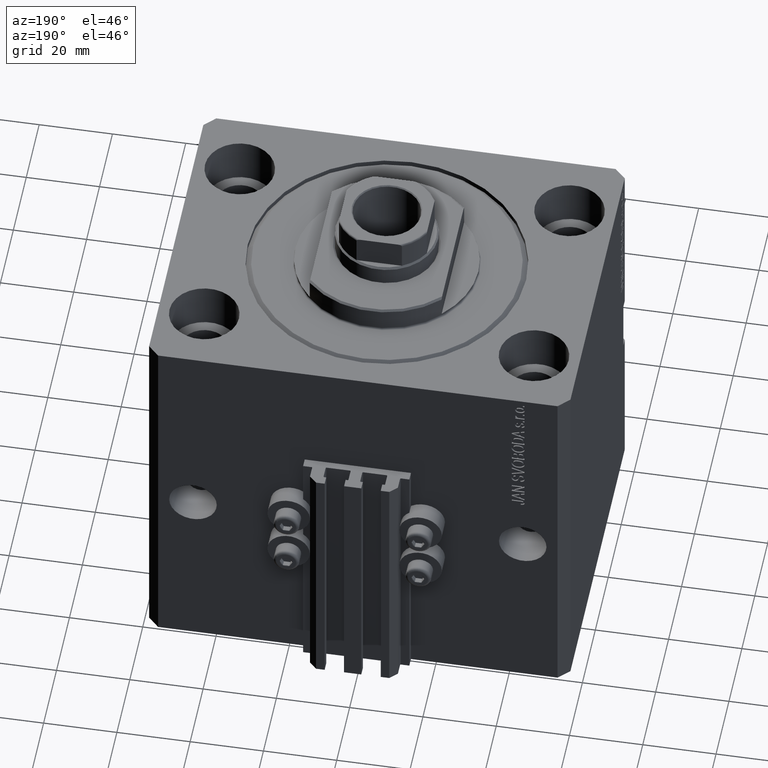
[diagram: clean part render]
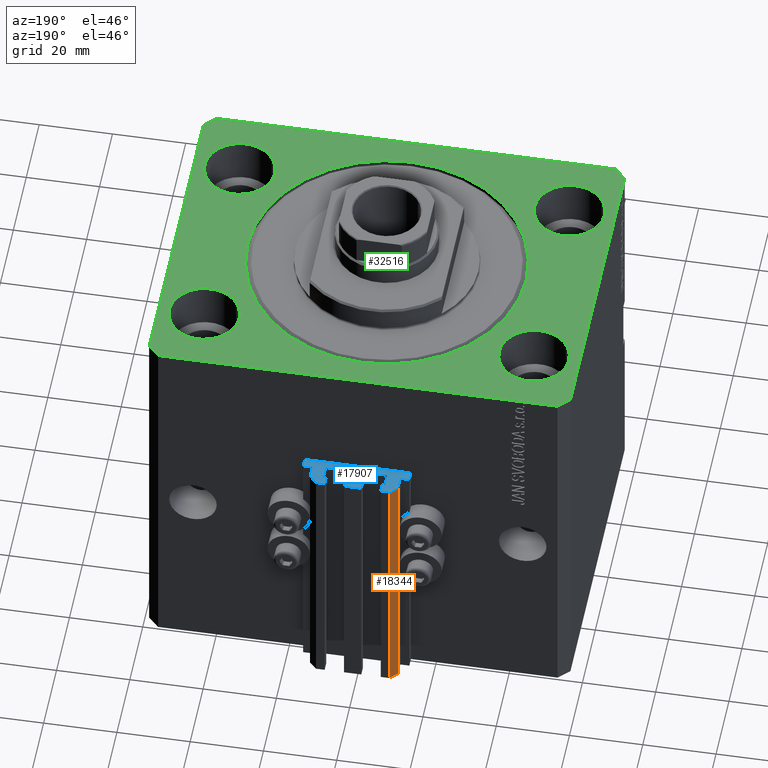
[diagram: same view with three faces highlighted in distinct colors, each labeled with its STEP entity id]
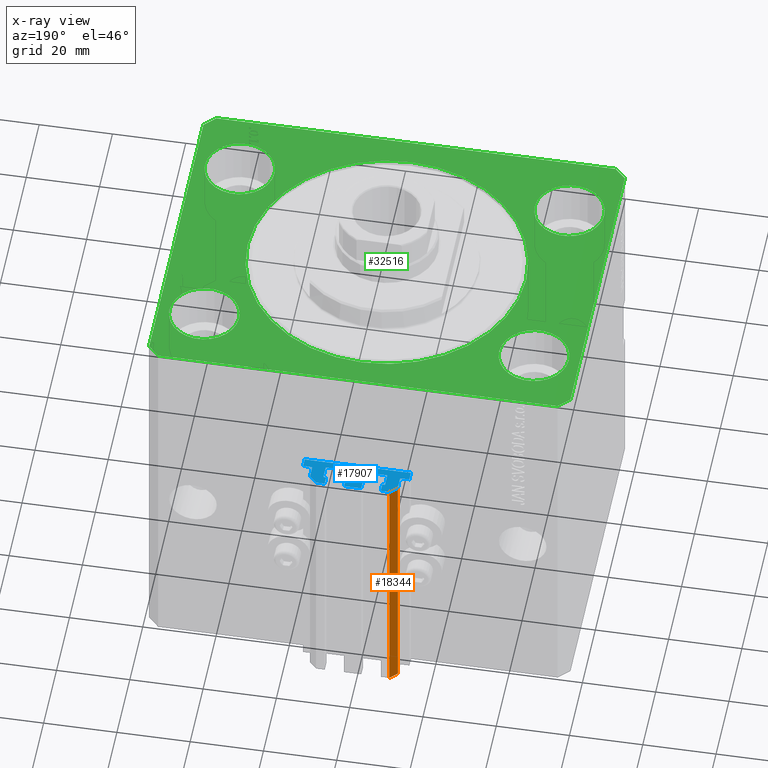
[diagram: x-ray of the same camera — body ghosted, the three highlighted faces saturated]
A machine part, auxiliary view with three faces highlighted in distinct colors.
The next image is the same camera in x-ray (body ghosted, the three faces saturated) — at least one of them is partly hidden behind the body in this view.
Their STEP definitions:

[orange] entity #18344 — the highlighted planar face has unit normal (-0.7071, 0.7071, 0).
#126 = VECTOR ( 'NONE', #24830, 1000.000000000000000 ) ;
#417 = CARTESIAN_POINT ( 'NONE',  ( -10.00000000000000000, 52.99999999999999289, -105.0000000000000000 ) ) ;
#1709 = CARTESIAN_POINT ( 'NONE',  ( -10.00000000000000000, 52.99999999999999289, -105.0000000000000000 ) ) ;
#1954 = LINE ( 'NONE', #1709, #29290 ) ;
#2420 = FACE_OUTER_BOUND ( 'NONE', #46989, .T. ) ;
#5131 = CARTESIAN_POINT ( 'NONE',  ( -10.00000000000000000, 52.99999999999999289, -105.0000000000000000 ) ) ;
#6419 = LINE ( 'NONE', #18194, #43615 ) ;
#6645 = AXIS2_PLACEMENT_3D ( 'NONE', #25037, #20612, #13225 ) ;
#6779 = EDGE_CURVE ( 'NONE', #14299, #33506, #16280, .T. ) ;
#9795 = PLANE ( 'NONE',  #6645 ) ;
#10245 = CARTESIAN_POINT ( 'NONE',  ( -12.00000000000000000, 50.99999999999999289, -33.00000000000000000 ) ) ;
#11392 = EDGE_CURVE ( 'NONE', #43782, #16552, #1954, .T. ) ;
#12132 = VECTOR ( 'NONE', #20115, 999.9999999999998863 ) ;
#13225 = DIRECTION ( 'NONE',  ( -0.7071067811865472397, -0.7071067811865479058, 0.000000000000000000 ) ) ;
#14299 = VERTEX_POINT ( 'NONE', #33981 ) ;
#16280 = LINE ( 'NONE', #42654, #126 ) ;
#16552 = VERTEX_POINT ( 'NONE', #42542 ) ;
#18194 = CARTESIAN_POINT ( 'NONE',  ( -10.00000000000000000, 52.99999999999999289, -33.00000000000000000 ) ) ;
#18282 = EDGE_CURVE ( 'NONE', #43782, #14299, #20361, .T. ) ;
#18344 = ADVANCED_FACE ( 'NONE', ( #2420 ), #9795, .T. ) ;
#20115 = DIRECTION ( 'NONE',  ( -0.7071067811865472397, -0.7071067811865479058, 0.000000000000000000 ) ) ;
#20361 = LINE ( 'NONE', #5131, #12132 ) ;
#20612 = DIRECTION ( 'NONE',  ( -0.7071067811865479058, 0.7071067811865472397, 0.000000000000000000 ) ) ;
#22676 = EDGE_CURVE ( 'NONE', #16552, #33506, #6419, .T. ) ;
#23146 = ORIENTED_EDGE ( 'NONE', *, *, #11392, .F. ) ;
#24830 = DIRECTION ( 'NONE',  ( 0.000000000000000000, 0.000000000000000000, 1.000000000000000000 ) ) ;
#25037 = CARTESIAN_POINT ( 'NONE',  ( -10.00000000000000000, 52.99999999999999289, -105.0000000000000000 ) ) ;
#29290 = VECTOR ( 'NONE', #46760, 1000.000000000000000 ) ;
#29938 = ORIENTED_EDGE ( 'NONE', *, *, #18282, .T. ) ;
#32762 = ORIENTED_EDGE ( 'NONE', *, *, #22676, .F. ) ;
#33506 = VERTEX_POINT ( 'NONE', #10245 ) ;
#33981 = CARTESIAN_POINT ( 'NONE',  ( -12.00000000000000000, 50.99999999999999289, -105.0000000000000000 ) ) ;
#40400 = DIRECTION ( 'NONE',  ( -0.7071067811865472397, -0.7071067811865479058, 0.000000000000000000 ) ) ;
#42542 = CARTESIAN_POINT ( 'NONE',  ( -10.00000000000000000, 52.99999999999999289, -33.00000000000000000 ) ) ;
#42654 = CARTESIAN_POINT ( 'NONE',  ( -12.00000000000000000, 50.99999999999999289, -105.0000000000000000 ) ) ;
#43615 = VECTOR ( 'NONE', #40400, 999.9999999999998863 ) ;
#43782 = VERTEX_POINT ( 'NONE', #417 ) ;
#46760 = DIRECTION ( 'NONE',  ( 0.000000000000000000, 0.000000000000000000, 1.000000000000000000 ) ) ;
#46799 = ORIENTED_EDGE ( 'NONE', *, *, #6779, .T. ) ;
#46989 = EDGE_LOOP ( 'NONE', ( #32762, #23146, #29938, #46799 ) ) ;

[blue] entity #17907 — the highlighted planar face has unit normal (0, 0, 1).
#58 = PLANE ( 'NONE',  #11328 ) ;
#542 = DIRECTION ( 'NONE',  ( 0.000000000000000000, 0.000000000000000000, 1.000000000000000000 ) ) ;
#552 = CARTESIAN_POINT ( 'NONE',  ( -2.350000000000003197, 50.60000000000000142, -33.00000000000000000 ) ) ;
#567 = CARTESIAN_POINT ( 'NONE',  ( -1.800000000000000933, 47.19999999999998863, -33.00000000000000000 ) ) ;
#581 = CARTESIAN_POINT ( 'NONE',  ( 12.20000000000000107, 47.70000000000000284, -33.00000000000000000 ) ) ;
#586 = EDGE_CURVE ( 'NONE', #5356, #34817, #39201, .T. ) ;
#737 = CARTESIAN_POINT ( 'NONE',  ( 8.400000000000003908, 50.39999999999999858, -33.00000000000000000 ) ) ;
#771 = CARTESIAN_POINT ( 'NONE',  ( -12.00000000000000000, 50.99999999999999289, -33.00000000000000000 ) ) ;
#888 = VECTOR ( 'NONE', #45361, 1000.000000000000000 ) ;
#996 = ORIENTED_EDGE ( 'NONE', *, *, #22676, .T. ) ;
#1010 = CARTESIAN_POINT ( 'NONE',  ( -8.199999999999999289, 50.59999999999999432, -33.00000000000000000 ) ) ;
#1134 = ORIENTED_EDGE ( 'NONE', *, *, #1802, .F. ) ;
#1332 = DIRECTION ( 'NONE',  ( 0.000000000000000000, 0.000000000000000000, 1.000000000000000000 ) ) ;
#1422 = EDGE_CURVE ( 'NONE', #19037, #11913, #31559, .T. ) ;
#1776 = VERTEX_POINT ( 'NONE', #13771 ) ;
#1802 = EDGE_CURVE ( 'NONE', #3593, #3839, #3845, .T. ) ;
#2008 = LINE ( 'NONE', #5206, #31724 ) ;
#2223 = CARTESIAN_POINT ( 'NONE',  ( 12.00000000000000178, 47.70000000000000284, -33.00000000000000000 ) ) ;
#2543 = VERTEX_POINT ( 'NONE', #15040 ) ;
#2601 = EDGE_CURVE ( 'NONE', #33506, #28186, #34476, .T. ) ;
#2895 = EDGE_CURVE ( 'NONE', #5356, #14603, #28234, .T. ) ;
#3073 = VECTOR ( 'NONE', #16294, 1000.000000000000000 ) ;
#3253 = FACE_OUTER_BOUND ( 'NONE', #33836, .T. ) ;
#3358 = CARTESIAN_POINT ( 'NONE',  ( -7.650000000000002132, 50.59999999999999432, -33.00000000000000000 ) ) ;
#3447 = CARTESIAN_POINT ( 'NONE',  ( -12.20000000000000107, 47.49999999999998579, -33.00000000000000000 ) ) ;
#3469 = VERTEX_POINT ( 'NONE', #41648 ) ;
#3517 = DIRECTION ( 'NONE',  ( 1.000000000000000000, -1.261617073437685503E-14, 0.000000000000000000 ) ) ;
#3593 = VERTEX_POINT ( 'NONE', #1010 ) ;
#3839 = VERTEX_POINT ( 'NONE', #30241 ) ;
#3845 = CIRCLE ( 'NONE', #21112, 0.2000000000000074496 ) ;
#3885 = ORIENTED_EDGE ( 'NONE', *, *, #11018, .T. ) ;
#4609 = CARTESIAN_POINT ( 'NONE',  ( 8.400000000000000355, 47.19999999999998863, -33.00000000000000000 ) ) ;
#4816 = EDGE_CURVE ( 'NONE', #34490, #42050, #39846, .T. ) ;
#4988 = AXIS2_PLACEMENT_3D ( 'NONE', #35042, #1332, #12625 ) ;
#5206 = CARTESIAN_POINT ( 'NONE',  ( -8.399999999999996803, 47.19999999999998863, -33.00000000000000000 ) ) ;
#5337 = VERTEX_POINT ( 'NONE', #33837 ) ;
#5356 = VERTEX_POINT ( 'NONE', #11415 ) ;
#5418 = LINE ( 'NONE', #2223, #12252 ) ;
#5494 = DIRECTION ( 'NONE',  ( -0.7071067811865474617, 0.7071067811865474617, 0.000000000000000000 ) ) ;
#5801 = LINE ( 'NONE', #24976, #48195 ) ;
#5947 = DIRECTION ( 'NONE',  ( -1.000000000000000000, 0.000000000000000000, 0.000000000000000000 ) ) ;
#6165 = DIRECTION ( 'NONE',  ( 1.000000000000000000, 0.000000000000000000, 0.000000000000000000 ) ) ;
#6380 = ORIENTED_EDGE ( 'NONE', *, *, #40675, .F. ) ;
#6419 = LINE ( 'NONE', #18194, #43615 ) ;
#6546 = VECTOR ( 'NONE', #5947, 1000.000000000000000 ) ;
#6609 = VECTOR ( 'NONE', #37282, 1000.000000000000000 ) ;
#6831 = CARTESIAN_POINT ( 'NONE',  ( -7.650000000000002132, 52.99999999999999289, -33.00000000000000000 ) ) ;
#7042 = ORIENTED_EDGE ( 'NONE', *, *, #43230, .T. ) ;
#7057 = LINE ( 'NONE', #25274, #23546 ) ;
#7190 = EDGE_CURVE ( 'NONE', #3469, #9268, #10728, .T. ) ;
#7243 = VECTOR ( 'NONE', #21523, 1000.000000000000000 ) ;
#7262 = CARTESIAN_POINT ( 'NONE',  ( 8.200000000000001066, 50.60000000000000853, -33.00000000000000000 ) ) ;
#7298 = LINE ( 'NONE', #10492, #24546 ) ;
#7416 = CARTESIAN_POINT ( 'NONE',  ( 8.200000000000001066, 50.39999999999999858, -33.00000000000000000 ) ) ;
#7503 = CIRCLE ( 'NONE', #28709, 0.2000000000000033418 ) ;
#7681 = LINE ( 'NONE', #552, #888 ) ;
#7721 = EDGE_CURVE ( 'NONE', #22819, #5337, #37079, .T. ) ;
#7873 = VECTOR ( 'NONE', #47949, 1000.000000000000000 ) ;
#8666 = AXIS2_PLACEMENT_3D ( 'NONE', #18493, #542, #40944 ) ;
#8698 = ORIENTED_EDGE ( 'NONE', *, *, #9501, .T. ) ;
#8889 = CARTESIAN_POINT ( 'NONE',  ( 14.49999999999999645, 47.50000000000001421, -33.00000000000000000 ) ) ;
#9268 = VERTEX_POINT ( 'NONE', #6831 ) ;
#9440 = CARTESIAN_POINT ( 'NONE',  ( 7.649999999999998579, 53.00000000000000711, -33.00000000000000000 ) ) ;
#9492 = CIRCLE ( 'NONE', #8666, 0.2000000000000040079 ) ;
#9501 = EDGE_CURVE ( 'NONE', #30312, #28605, #41488, .T. ) ;
#9761 = ORIENTED_EDGE ( 'NONE', *, *, #48147, .T. ) ;
#9842 = DIRECTION ( 'NONE',  ( -5.256737805990328981E-16, 1.000000000000000000, 0.000000000000000000 ) ) ;
#10067 = VERTEX_POINT ( 'NONE', #34255 ) ;
#10245 = CARTESIAN_POINT ( 'NONE',  ( -12.00000000000000000, 50.99999999999999289, -33.00000000000000000 ) ) ;
#10492 = CARTESIAN_POINT ( 'NONE',  ( -1.600000000000000533, 50.39999999999999858, -33.00000000000000000 ) ) ;
#10728 = LINE ( 'NONE', #3358, #28381 ) ;
#10791 = DIRECTION ( 'NONE',  ( 0.000000000000000000, 1.000000000000000000, 0.000000000000000000 ) ) ;
#11018 = EDGE_CURVE ( 'NONE', #30999, #5337, #28320, .T. ) ;
#11328 = AXIS2_PLACEMENT_3D ( 'NONE', #18248, #33281, #30068 ) ;
#11415 = CARTESIAN_POINT ( 'NONE',  ( 8.199999999999999289, 46.99999999999998579, -33.00000000000000000 ) ) ;
#11560 = EDGE_CURVE ( 'NONE', #16370, #21830, #5801, .T. ) ;
#11585 = DIRECTION ( 'NONE',  ( 1.000000000000000000, 0.000000000000000000, 0.000000000000000000 ) ) ;
#11756 = CIRCLE ( 'NONE', #17283, 0.2000000000000040079 ) ;
#11789 = EDGE_CURVE ( 'NONE', #24751, #28605, #16743, .T. ) ;
#11814 = CARTESIAN_POINT ( 'NONE',  ( 8.199999999999999289, 47.19999999999998863, -33.00000000000000000 ) ) ;
#11869 = VERTEX_POINT ( 'NONE', #9440 ) ;
#11879 = CARTESIAN_POINT ( 'NONE',  ( -12.20000000000000107, 47.49999999999998579, -33.00000000000000000 ) ) ;
#11913 = VERTEX_POINT ( 'NONE', #18742 ) ;
#11992 = DIRECTION ( 'NONE',  ( 0.000000000000000000, -1.000000000000000000, 0.000000000000000000 ) ) ;
#12120 = EDGE_CURVE ( 'NONE', #24751, #3839, #2008, .T. ) ;
#12252 = VECTOR ( 'NONE', #9842, 1000.000000000000000 ) ;
#12293 = LINE ( 'NONE', #16468, #37109 ) ;
#12625 = DIRECTION ( 'NONE',  ( 1.000000000000000000, 0.000000000000000000, 0.000000000000000000 ) ) ;
#12644 = CARTESIAN_POINT ( 'NONE',  ( 1.600000000000000533, 50.39999999999999858, -33.00000000000000000 ) ) ;
#13031 = DIRECTION ( 'NONE',  ( 0.000000000000000000, -1.000000000000000000, 0.000000000000000000 ) ) ;
#13365 = VERTEX_POINT ( 'NONE', #737 ) ;
#13696 = EDGE_CURVE ( 'NONE', #1776, #30257, #28696, .T. ) ;
#13771 = CARTESIAN_POINT ( 'NONE',  ( -2.350000000000003642, 53.00000000000000000, -33.00000000000000000 ) ) ;
#13783 = CARTESIAN_POINT ( 'NONE',  ( 2.349999999999999645, 53.00000000000000000, -33.00000000000000000 ) ) ;
#13796 = DIRECTION ( 'NONE',  ( -1.084202172485506406E-15, 1.000000000000000000, 0.000000000000000000 ) ) ;
#13854 = CIRCLE ( 'NONE', #32728, 0.1999999999999994282 ) ;
#13864 = CARTESIAN_POINT ( 'NONE',  ( -12.00000000000000000, 47.69999999999999574, -33.00000000000000000 ) ) ;
#14321 = ORIENTED_EDGE ( 'NONE', *, *, #24064, .F. ) ;
#14468 = ORIENTED_EDGE ( 'NONE', *, *, #29976, .F. ) ;
#14603 = VERTEX_POINT ( 'NONE', #4609 ) ;
#14956 = ORIENTED_EDGE ( 'NONE', *, *, #7721, .F. ) ;
#15040 = CARTESIAN_POINT ( 'NONE',  ( 1.800000000000000933, 50.60000000000000853, -33.00000000000000000 ) ) ;
#15637 = ORIENTED_EDGE ( 'NONE', *, *, #17546, .T. ) ;
#16204 = VERTEX_POINT ( 'NONE', #47804 ) ;
#16294 = DIRECTION ( 'NONE',  ( -1.000000000000000000, 0.000000000000000000, 0.000000000000000000 ) ) ;
#16303 = CARTESIAN_POINT ( 'NONE',  ( 12.00000000000000000, 51.00000000000000711, -33.00000000000000000 ) ) ;
#16370 = VERTEX_POINT ( 'NONE', #38651 ) ;
#16433 = VERTEX_POINT ( 'NONE', #35686 ) ;
#16468 = CARTESIAN_POINT ( 'NONE',  ( 14.49999999999999645, 45.00000000000000000, -33.00000000000000000 ) ) ;
#16552 = VERTEX_POINT ( 'NONE', #42542 ) ;
#16670 = VERTEX_POINT ( 'NONE', #41814 ) ;
#16743 = CIRCLE ( 'NONE', #4988, 0.1999999999999987899 ) ;
#17151 = ORIENTED_EDGE ( 'NONE', *, *, #1422, .T. ) ;
#17283 = AXIS2_PLACEMENT_3D ( 'NONE', #7416, #23135, #33516 ) ;
#17546 = EDGE_CURVE ( 'NONE', #31104, #41065, #26418, .T. ) ;
#17631 = EDGE_CURVE ( 'NONE', #10067, #16433, #43162, .T. ) ;
#17650 = CARTESIAN_POINT ( 'NONE',  ( -14.50000000000000000, 45.00000000000000000, -33.00000000000000000 ) ) ;
#17795 = EDGE_CURVE ( 'NONE', #41687, #16670, #42810, .T. ) ;
#17907 = ADVANCED_FACE ( 'NONE', ( #3253 ), #58, .T. ) ;
#18080 = CARTESIAN_POINT ( 'NONE',  ( -1.800000000000000933, 46.99999999999999289, -33.00000000000000000 ) ) ;
#18118 = DIRECTION ( 'NONE',  ( -1.000000000000000000, 0.000000000000000000, 0.000000000000000000 ) ) ;
#18194 = CARTESIAN_POINT ( 'NONE',  ( -10.00000000000000000, 52.99999999999999289, -33.00000000000000000 ) ) ;
#18248 = CARTESIAN_POINT ( 'NONE',  ( 12.20000000000000107, 47.70000000000000284, -33.00000000000000000 ) ) ;
#18493 = CARTESIAN_POINT ( 'NONE',  ( -12.20000000000000107, 47.69999999999999574, -33.00000000000000000 ) ) ;
#18742 = CARTESIAN_POINT ( 'NONE',  ( -14.50000000000000000, 47.49999999999998579, -33.00000000000000000 ) ) ;
#18769 = DIRECTION ( 'NONE',  ( 1.000000000000000000, 0.000000000000000000, 0.000000000000000000 ) ) ;
#18794 = ORIENTED_EDGE ( 'NONE', *, *, #11560, .T. ) ;
#19037 = VERTEX_POINT ( 'NONE', #3447 ) ;
#19055 = CARTESIAN_POINT ( 'NONE',  ( 1.800000000000000933, 50.60000000000000853, -33.00000000000000000 ) ) ;
#19669 = EDGE_CURVE ( 'NONE', #22819, #10067, #5418, .T. ) ;
#20273 = CARTESIAN_POINT ( 'NONE',  ( -14.50000000000000000, 45.00000000000000000, -33.00000000000000000 ) ) ;
#20608 = VECTOR ( 'NONE', #47682, 1000.000000000000000 ) ;
#20628 = EDGE_CURVE ( 'NONE', #1776, #21830, #37464, .T. ) ;
#21112 = AXIS2_PLACEMENT_3D ( 'NONE', #43590, #24845, #6165 ) ;
#21249 = CIRCLE ( 'NONE', #42504, 0.2000000000000033418 ) ;
#21523 = DIRECTION ( 'NONE',  ( -1.000000000000000000, 0.000000000000000000, 0.000000000000000000 ) ) ;
#21617 = CARTESIAN_POINT ( 'NONE',  ( 1.600000000000000533, 47.19999999999998863, -33.00000000000000000 ) ) ;
#21830 = VERTEX_POINT ( 'NONE', #13783 ) ;
#22171 = CARTESIAN_POINT ( 'NONE',  ( -2.350000000000003642, 53.00000000000000000, -33.00000000000000000 ) ) ;
#22417 = DIRECTION ( 'NONE',  ( 1.000000000000000000, 0.000000000000000000, 0.000000000000000000 ) ) ;
#22676 = EDGE_CURVE ( 'NONE', #16552, #33506, #6419, .T. ) ;
#22819 = VERTEX_POINT ( 'NONE', #38867 ) ;
#23135 = DIRECTION ( 'NONE',  ( 0.000000000000000000, 0.000000000000000000, 1.000000000000000000 ) ) ;
#23159 = ORIENTED_EDGE ( 'NONE', *, *, #43632, .T. ) ;
#23235 = LINE ( 'NONE', #19055, #35002 ) ;
#23408 = VECTOR ( 'NONE', #10791, 1000.000000000000000 ) ;
#23546 = VECTOR ( 'NONE', #40808, 1000.000000000000000 ) ;
#23595 = ORIENTED_EDGE ( 'NONE', *, *, #13696, .T. ) ;
#24064 = EDGE_CURVE ( 'NONE', #16204, #34817, #7503, .T. ) ;
#24546 = VECTOR ( 'NONE', #29197, 1000.000000000000000 ) ;
#24749 = DIRECTION ( 'NONE',  ( 1.000000000000000000, 0.000000000000000000, 0.000000000000000000 ) ) ;
#24751 = VERTEX_POINT ( 'NONE', #25601 ) ;
#24845 = DIRECTION ( 'NONE',  ( 0.000000000000000000, 0.000000000000000000, 1.000000000000000000 ) ) ;
#24976 = CARTESIAN_POINT ( 'NONE',  ( 2.349999999999999645, 50.60000000000000142, -33.00000000000000000 ) ) ;
#25162 = CARTESIAN_POINT ( 'NONE',  ( -1.800000000000000933, 50.39999999999999858, -33.00000000000000000 ) ) ;
#25253 = CARTESIAN_POINT ( 'NONE',  ( -2.350000000000003642, 53.00000000000000000, -33.00000000000000000 ) ) ;
#25274 = CARTESIAN_POINT ( 'NONE',  ( 8.400000000000000355, 50.39999999999999858, -33.00000000000000000 ) ) ;
#25601 = CARTESIAN_POINT ( 'NONE',  ( -8.399999999999996803, 47.19999999999998863, -33.00000000000000000 ) ) ;
#26331 = ORIENTED_EDGE ( 'NONE', *, *, #44224, .F. ) ;
#26390 = DIRECTION ( 'NONE',  ( 1.000000000000000000, 0.000000000000000000, 0.000000000000000000 ) ) ;
#26418 = LINE ( 'NONE', #41713, #6609 ) ;
#26630 = DIRECTION ( 'NONE',  ( 0.000000000000000000, 0.000000000000000000, 1.000000000000000000 ) ) ;
#26822 = DIRECTION ( 'NONE',  ( 0.000000000000000000, 0.000000000000000000, 1.000000000000000000 ) ) ;
#26979 = CARTESIAN_POINT ( 'NONE',  ( -8.199999999999997513, 46.99999999999999289, -33.00000000000000000 ) ) ;
#26982 = EDGE_CURVE ( 'NONE', #3593, #3469, #47610, .T. ) ;
#27169 = DIRECTION ( 'NONE',  ( 1.000000000000000000, -1.261617073437681085E-14, 0.000000000000000000 ) ) ;
#27421 = AXIS2_PLACEMENT_3D ( 'NONE', #11814, #26822, #41880 ) ;
#27468 = ORIENTED_EDGE ( 'NONE', *, *, #586, .T. ) ;
#27487 = ORIENTED_EDGE ( 'NONE', *, *, #11789, .F. ) ;
#27669 = EDGE_CURVE ( 'NONE', #2543, #16370, #23235, .T. ) ;
#28186 = VERTEX_POINT ( 'NONE', #13864 ) ;
#28234 = CIRCLE ( 'NONE', #27421, 0.2000000000000022593 ) ;
#28268 = VECTOR ( 'NONE', #13031, 1000.000000000000000 ) ;
#28320 = LINE ( 'NONE', #46568, #6546 ) ;
#28381 = VECTOR ( 'NONE', #36834, 1000.000000000000000 ) ;
#28437 = DIRECTION ( 'NONE',  ( 0.000000000000000000, 0.000000000000000000, 1.000000000000000000 ) ) ;
#28605 = VERTEX_POINT ( 'NONE', #26979 ) ;
#28696 = LINE ( 'NONE', #25253, #20608 ) ;
#28709 = AXIS2_PLACEMENT_3D ( 'NONE', #32395, #28437, #24749 ) ;
#28975 = DIRECTION ( 'NONE',  ( 1.000000000000000000, 0.000000000000000000, 0.000000000000000000 ) ) ;
#29012 = VECTOR ( 'NONE', #38425, 1000.000000000000000 ) ;
#29197 = DIRECTION ( 'NONE',  ( -6.776263578034385456E-17, -1.000000000000000000, 0.000000000000000000 ) ) ;
#29622 = VECTOR ( 'NONE', #34748, 1000.000000000000000 ) ;
#29673 = CARTESIAN_POINT ( 'NONE',  ( -1.599999999999997868, 50.39999999999999858, -33.00000000000000000 ) ) ;
#29740 = LINE ( 'NONE', #21617, #23408 ) ;
#29826 = ORIENTED_EDGE ( 'NONE', *, *, #27669, .T. ) ;
#29976 = EDGE_CURVE ( 'NONE', #30312, #40309, #13854, .T. ) ;
#30068 = DIRECTION ( 'NONE',  ( 1.000000000000000000, 0.000000000000000000, -0.000000000000000000 ) ) ;
#30241 = CARTESIAN_POINT ( 'NONE',  ( -8.400000000000000355, 50.39999999999998437, -33.00000000000000000 ) ) ;
#30257 = VERTEX_POINT ( 'NONE', #33977 ) ;
#30312 = VERTEX_POINT ( 'NONE', #37920 ) ;
#30711 = LINE ( 'NONE', #30942, #38481 ) ;
#30809 = LINE ( 'NONE', #46573, #29622 ) ;
#30942 = CARTESIAN_POINT ( 'NONE',  ( 7.649999999999998579, 53.00000000000000711, -33.00000000000000000 ) ) ;
#30999 = VERTEX_POINT ( 'NONE', #8889 ) ;
#31104 = VERTEX_POINT ( 'NONE', #47547 ) ;
#31175 = ORIENTED_EDGE ( 'NONE', *, *, #17795, .F. ) ;
#31559 = LINE ( 'NONE', #11879, #3073 ) ;
#31724 = VECTOR ( 'NONE', #13796, 1000.000000000000000 ) ;
#31810 = EDGE_CURVE ( 'NONE', #9268, #16552, #30809, .T. ) ;
#31994 = LINE ( 'NONE', #46788, #28268 ) ;
#32395 = CARTESIAN_POINT ( 'NONE',  ( 1.800000000000000933, 47.19999999999998863, -33.00000000000000000 ) ) ;
#32580 = CARTESIAN_POINT ( 'NONE',  ( -8.199999999999999289, 50.60000000000000142, -33.00000000000000000 ) ) ;
#32715 = ORIENTED_EDGE ( 'NONE', *, *, #47675, .T. ) ;
#32728 = AXIS2_PLACEMENT_3D ( 'NONE', #567, #26630, #26390 ) ;
#32903 = CARTESIAN_POINT ( 'NONE',  ( 9.999999999999998224, 53.00000000000000711, -33.00000000000000000 ) ) ;
#33281 = DIRECTION ( 'NONE',  ( 0.000000000000000000, 0.000000000000000000, 1.000000000000000000 ) ) ;
#33506 = VERTEX_POINT ( 'NONE', #10245 ) ;
#33516 = DIRECTION ( 'NONE',  ( 1.000000000000000000, 0.000000000000000000, 0.000000000000000000 ) ) ;
#33836 = EDGE_LOOP ( 'NONE', ( #7042, #38794, #32715, #3885, #14956, #34790, #39810, #44226, #45567, #15637, #43523, #23159, #43428, #27468, #14321, #43497, #6380, #29826, #18794, #34455, #23595, #43770, #31175, #9761, #14468, #8698, #27487, #42042, #1134, #48378, #46282, #48283, #996, #41116, #26331, #17151 ) ) ;
#33837 = CARTESIAN_POINT ( 'NONE',  ( 12.20000000000000107, 47.50000000000001421, -33.00000000000000000 ) ) ;
#33977 = CARTESIAN_POINT ( 'NONE',  ( -2.350000000000003197, 50.60000000000000142, -33.00000000000000000 ) ) ;
#34009 = DIRECTION ( 'NONE',  ( 0.000000000000000000, 0.000000000000000000, 1.000000000000000000 ) ) ;
#34255 = CARTESIAN_POINT ( 'NONE',  ( 12.00000000000000000, 51.00000000000000711, -33.00000000000000000 ) ) ;
#34455 = ORIENTED_EDGE ( 'NONE', *, *, #20628, .F. ) ;
#34476 = LINE ( 'NONE', #771, #29012 ) ;
#34490 = VERTEX_POINT ( 'NONE', #20273 ) ;
#34748 = DIRECTION ( 'NONE',  ( -1.000000000000000000, 0.000000000000000000, 0.000000000000000000 ) ) ;
#34775 = VECTOR ( 'NONE', #18118, 1000.000000000000000 ) ;
#34790 = ORIENTED_EDGE ( 'NONE', *, *, #19669, .T. ) ;
#34817 = VERTEX_POINT ( 'NONE', #39203 ) ;
#35002 = VECTOR ( 'NONE', #27169, 1000.000000000000000 ) ;
#35033 = EDGE_CURVE ( 'NONE', #16204, #36053, #29740, .T. ) ;
#35042 = CARTESIAN_POINT ( 'NONE',  ( -8.199999999999997513, 47.19999999999998863, -33.00000000000000000 ) ) ;
#35686 = CARTESIAN_POINT ( 'NONE',  ( 9.999999999999998224, 53.00000000000000711, -33.00000000000000000 ) ) ;
#36053 = VERTEX_POINT ( 'NONE', #12644 ) ;
#36834 = DIRECTION ( 'NONE',  ( 0.000000000000000000, 1.000000000000000000, 0.000000000000000000 ) ) ;
#36843 = LINE ( 'NONE', #32903, #34775 ) ;
#37079 = CIRCLE ( 'NONE', #41041, 0.1999999999999953204 ) ;
#37109 = VECTOR ( 'NONE', #38661, 1000.000000000000000 ) ;
#37282 = DIRECTION ( 'NONE',  ( 1.000000000000000000, 0.000000000000000000, 0.000000000000000000 ) ) ;
#37464 = LINE ( 'NONE', #22171, #39385 ) ;
#37920 = CARTESIAN_POINT ( 'NONE',  ( -1.800000000000000933, 46.99999999999999289, -33.00000000000000000 ) ) ;
#38244 = EDGE_CURVE ( 'NONE', #13365, #41065, #11756, .T. ) ;
#38425 = DIRECTION ( 'NONE',  ( 0.000000000000000000, -1.000000000000000000, 0.000000000000000000 ) ) ;
#38469 = DIRECTION ( 'NONE',  ( 0.000000000000000000, 0.000000000000000000, 1.000000000000000000 ) ) ;
#38481 = VECTOR ( 'NONE', #11992, 1000.000000000000000 ) ;
#38651 = CARTESIAN_POINT ( 'NONE',  ( 2.349999999999999645, 50.60000000000000142, -33.00000000000000000 ) ) ;
#38661 = DIRECTION ( 'NONE',  ( 0.000000000000000000, 1.000000000000000000, 0.000000000000000000 ) ) ;
#38794 = ORIENTED_EDGE ( 'NONE', *, *, #4816, .T. ) ;
#38867 = CARTESIAN_POINT ( 'NONE',  ( 12.00000000000000533, 47.70000000000000284, -33.00000000000000000 ) ) ;
#39172 = CARTESIAN_POINT ( 'NONE',  ( -1.600000000000000755, 47.19999999999998863, -33.00000000000000000 ) ) ;
#39201 = LINE ( 'NONE', #46838, #47851 ) ;
#39203 = CARTESIAN_POINT ( 'NONE',  ( 1.800000000000000933, 46.99999999999998579, -33.00000000000000000 ) ) ;
#39385 = VECTOR ( 'NONE', #22417, 1000.000000000000000 ) ;
#39810 = ORIENTED_EDGE ( 'NONE', *, *, #17631, .T. ) ;
#39846 = LINE ( 'NONE', #17650, #7873 ) ;
#40102 = DIRECTION ( 'NONE',  ( 0.000000000000000000, 0.000000000000000000, 1.000000000000000000 ) ) ;
#40309 = VERTEX_POINT ( 'NONE', #39172 ) ;
#40400 = DIRECTION ( 'NONE',  ( -0.7071067811865472397, -0.7071067811865479058, 0.000000000000000000 ) ) ;
#40675 = EDGE_CURVE ( 'NONE', #2543, #36053, #21249, .T. ) ;
#40808 = DIRECTION ( 'NONE',  ( -5.421010862427508365E-16, -1.000000000000000000, 0.000000000000000000 ) ) ;
#40944 = DIRECTION ( 'NONE',  ( 1.000000000000000000, 0.000000000000000000, 0.000000000000000000 ) ) ;
#41041 = AXIS2_PLACEMENT_3D ( 'NONE', #581, #38469, #18769 ) ;
#41065 = VERTEX_POINT ( 'NONE', #7262 ) ;
#41116 = ORIENTED_EDGE ( 'NONE', *, *, #2601, .T. ) ;
#41488 = LINE ( 'NONE', #18080, #7243 ) ;
#41648 = CARTESIAN_POINT ( 'NONE',  ( -7.650000000000002132, 50.59999999999999432, -33.00000000000000000 ) ) ;
#41687 = VERTEX_POINT ( 'NONE', #29673 ) ;
#41713 = CARTESIAN_POINT ( 'NONE',  ( 7.649999999999998579, 50.60000000000000853, -33.00000000000000000 ) ) ;
#41814 = CARTESIAN_POINT ( 'NONE',  ( -1.800000000000000933, 50.60000000000000853, -33.00000000000000000 ) ) ;
#41880 = DIRECTION ( 'NONE',  ( 1.000000000000000000, 0.000000000000000000, 0.000000000000000000 ) ) ;
#42042 = ORIENTED_EDGE ( 'NONE', *, *, #12120, .T. ) ;
#42050 = VERTEX_POINT ( 'NONE', #42657 ) ;
#42499 = EDGE_CURVE ( 'NONE', #11869, #31104, #30711, .T. ) ;
#42504 = AXIS2_PLACEMENT_3D ( 'NONE', #47242, #40102, #28975 ) ;
#42542 = CARTESIAN_POINT ( 'NONE',  ( -10.00000000000000000, 52.99999999999999289, -33.00000000000000000 ) ) ;
#42657 = CARTESIAN_POINT ( 'NONE',  ( 14.49999999999999645, 45.00000000000000000, -33.00000000000000000 ) ) ;
#42810 = CIRCLE ( 'NONE', #43595, 0.2000000000000031197 ) ;
#42984 = DIRECTION ( 'NONE',  ( 0.000000000000000000, 1.000000000000000000, 0.000000000000000000 ) ) ;
#43162 = LINE ( 'NONE', #16303, #44367 ) ;
#43230 = EDGE_CURVE ( 'NONE', #11913, #34490, #31994, .T. ) ;
#43396 = DIRECTION ( 'NONE',  ( -1.000000000000000000, 0.000000000000000000, 0.000000000000000000 ) ) ;
#43428 = ORIENTED_EDGE ( 'NONE', *, *, #2895, .F. ) ;
#43497 = ORIENTED_EDGE ( 'NONE', *, *, #35033, .T. ) ;
#43523 = ORIENTED_EDGE ( 'NONE', *, *, #38244, .F. ) ;
#43590 = CARTESIAN_POINT ( 'NONE',  ( -8.199999999999997513, 50.39999999999998437, -33.00000000000000000 ) ) ;
#43595 = AXIS2_PLACEMENT_3D ( 'NONE', #25162, #34009, #11585 ) ;
#43615 = VECTOR ( 'NONE', #40400, 999.9999999999998863 ) ;
#43632 = EDGE_CURVE ( 'NONE', #13365, #14603, #7057, .T. ) ;
#43770 = ORIENTED_EDGE ( 'NONE', *, *, #45229, .T. ) ;
#44224 = EDGE_CURVE ( 'NONE', #19037, #28186, #9492, .T. ) ;
#44226 = ORIENTED_EDGE ( 'NONE', *, *, #48089, .T. ) ;
#44367 = VECTOR ( 'NONE', #5494, 1000.000000000000114 ) ;
#45229 = EDGE_CURVE ( 'NONE', #30257, #16670, #7681, .T. ) ;
#45322 = VECTOR ( 'NONE', #3517, 1000.000000000000000 ) ;
#45361 = DIRECTION ( 'NONE',  ( 1.000000000000000000, 1.261617073437673039E-14, 0.000000000000000000 ) ) ;
#45567 = ORIENTED_EDGE ( 'NONE', *, *, #42499, .T. ) ;
#46282 = ORIENTED_EDGE ( 'NONE', *, *, #7190, .T. ) ;
#46568 = CARTESIAN_POINT ( 'NONE',  ( 14.49999999999999645, 47.50000000000001421, -33.00000000000000000 ) ) ;
#46573 = CARTESIAN_POINT ( 'NONE',  ( -7.650000000000002132, 52.99999999999999289, -33.00000000000000000 ) ) ;
#46788 = CARTESIAN_POINT ( 'NONE',  ( -14.50000000000000000, 47.49999999999998579, -33.00000000000000000 ) ) ;
#46838 = CARTESIAN_POINT ( 'NONE',  ( 8.199999999999999289, 46.99999999999998579, -33.00000000000000000 ) ) ;
#47242 = CARTESIAN_POINT ( 'NONE',  ( 1.800000000000000933, 50.39999999999999858, -33.00000000000000000 ) ) ;
#47547 = CARTESIAN_POINT ( 'NONE',  ( 7.649999999999998579, 50.60000000000000853, -33.00000000000000000 ) ) ;
#47610 = LINE ( 'NONE', #32580, #45322 ) ;
#47675 = EDGE_CURVE ( 'NONE', #42050, #30999, #12293, .T. ) ;
#47682 = DIRECTION ( 'NONE',  ( 1.807003620809174632E-16, -1.000000000000000000, 0.000000000000000000 ) ) ;
#47804 = CARTESIAN_POINT ( 'NONE',  ( 1.599999999999997868, 47.19999999999998863, -33.00000000000000000 ) ) ;
#47851 = VECTOR ( 'NONE', #43396, 1000.000000000000000 ) ;
#47949 = DIRECTION ( 'NONE',  ( 1.000000000000000000, 0.000000000000000000, 0.000000000000000000 ) ) ;
#48089 = EDGE_CURVE ( 'NONE', #16433, #11869, #36843, .T. ) ;
#48147 = EDGE_CURVE ( 'NONE', #41687, #40309, #7298, .T. ) ;
#48195 = VECTOR ( 'NONE', #42984, 1000.000000000000000 ) ;
#48283 = ORIENTED_EDGE ( 'NONE', *, *, #31810, .T. ) ;
#48378 = ORIENTED_EDGE ( 'NONE', *, *, #26982, .T. ) ;

[green] entity #32516 — the highlighted planar face has unit normal (0, 0, 1).
#507 = EDGE_CURVE ( 'NONE', #11307, #24058, #47574, .T. ) ;
#985 = DIRECTION ( 'NONE',  ( 1.000000000000000000, 0.000000000000000000, 0.000000000000000000 ) ) ;
#1023 = AXIS2_PLACEMENT_3D ( 'NONE', #24015, #24510, #5334 ) ;
#1247 = CIRCLE ( 'NONE', #30330, 9.500000000000001776 ) ;
#1321 = ORIENTED_EDGE ( 'NONE', *, *, #14682, .F. ) ;
#1644 = EDGE_CURVE ( 'NONE', #22385, #10274, #33269, .T. ) ;
#2121 = VERTEX_POINT ( 'NONE', #16913 ) ;
#2153 = FACE_BOUND ( 'NONE', #16331, .T. ) ;
#2286 = EDGE_CURVE ( 'NONE', #2792, #3957, #16300, .T. ) ;
#2792 = VERTEX_POINT ( 'NONE', #37450 ) ;
#3189 = DIRECTION ( 'NONE',  ( 0.7071067811865491270, -0.7071067811865459074, 0.000000000000000000 ) ) ;
#3320 = VERTEX_POINT ( 'NONE', #37758 ) ;
#3452 = VERTEX_POINT ( 'NONE', #22166 ) ;
#3942 = VECTOR ( 'NONE', #3189, 1000.000000000000114 ) ;
#3957 = VERTEX_POINT ( 'NONE', #31445 ) ;
#4066 = CARTESIAN_POINT ( 'NONE',  ( -45.00000000000000000, 27.50000000000000355, 0.000000000000000000 ) ) ;
#4113 = ORIENTED_EDGE ( 'NONE', *, *, #46839, .F. ) ;
#4308 = EDGE_CURVE ( 'NONE', #10452, #6025, #41667, .T. ) ;
#4494 = PLANE ( 'NONE',  #41466 ) ;
#4566 = EDGE_CURVE ( 'NONE', #17054, #3320, #44318, .T. ) ;
#4671 = DIRECTION ( 'NONE',  ( 0.000000000000000000, 0.000000000000000000, 1.000000000000000000 ) ) ;
#5002 = DIRECTION ( 'NONE',  ( 0.000000000000000000, 0.000000000000000000, 1.000000000000000000 ) ) ;
#5101 = CARTESIAN_POINT ( 'NONE',  ( -38.00000000000000000, 4.653657836759941941E-15, 0.000000000000000000 ) ) ;
#5334 = DIRECTION ( 'NONE',  ( 1.000000000000000000, 0.000000000000000000, 0.000000000000000000 ) ) ;
#5631 = CIRCLE ( 'NONE', #23648, 9.500000000000001776 ) ;
#5969 = CARTESIAN_POINT ( 'NONE',  ( 57.50000000000055422, 41.99999999999997868, 0.000000000000000000 ) ) ;
#6025 = VERTEX_POINT ( 'NONE', #5101 ) ;
#6556 = ORIENTED_EDGE ( 'NONE', *, *, #4566, .T. ) ;
#6681 = EDGE_LOOP ( 'NONE', ( #7129, #43621 ) ) ;
#7129 = ORIENTED_EDGE ( 'NONE', *, *, #12142, .F. ) ;
#7464 = EDGE_CURVE ( 'NONE', #3320, #22385, #28651, .T. ) ;
#8355 = CARTESIAN_POINT ( 'NONE',  ( -45.00000000000000000, -27.49999999999999645, 0.000000000000000000 ) ) ;
#8682 = VERTEX_POINT ( 'NONE', #29884 ) ;
#8717 = EDGE_CURVE ( 'NONE', #3452, #14631, #22924, .T. ) ;
#8815 = CARTESIAN_POINT ( 'NONE',  ( 45.00000000000000000, 27.50000000000001776, 0.000000000000000000 ) ) ;
#9111 = CARTESIAN_POINT ( 'NONE',  ( -35.50000000000000000, -27.49999999999999645, 0.000000000000000000 ) ) ;
#10233 = CARTESIAN_POINT ( 'NONE',  ( 54.50000000000058975, 45.00000000000002842, 0.000000000000000000 ) ) ;
#10274 = VERTEX_POINT ( 'NONE', #38813 ) ;
#10392 = ORIENTED_EDGE ( 'NONE', *, *, #8717, .F. ) ;
#10449 = DIRECTION ( 'NONE',  ( 0.000000000000000000, 0.000000000000000000, 1.000000000000000000 ) ) ;
#10452 = VERTEX_POINT ( 'NONE', #40770 ) ;
#10561 = CIRCLE ( 'NONE', #19995, 9.500000000000001776 ) ;
#11093 = VECTOR ( 'NONE', #12657, 1000.000000000000000 ) ;
#11307 = VERTEX_POINT ( 'NONE', #18926 ) ;
#11664 = CARTESIAN_POINT ( 'NONE',  ( 57.50000000000000711, -41.99999999999998579, 0.000000000000000000 ) ) ;
#12142 = EDGE_CURVE ( 'NONE', #2121, #31687, #36451, .T. ) ;
#12364 = DIRECTION ( 'NONE',  ( -2.478176394252581141E-16, -1.000000000000000000, 0.000000000000000000 ) ) ;
#12491 = VECTOR ( 'NONE', #38975, 1000.000000000000000 ) ;
#12657 = DIRECTION ( 'NONE',  ( 1.000000000000000000, 1.273191542001326317E-16, 0.000000000000000000 ) ) ;
#13055 = DIRECTION ( 'NONE',  ( 1.000000000000000000, 0.000000000000000000, 0.000000000000000000 ) ) ;
#13447 = FACE_BOUND ( 'NONE', #28226, .T. ) ;
#14631 = VERTEX_POINT ( 'NONE', #45490 ) ;
#14682 = EDGE_CURVE ( 'NONE', #8682, #43139, #22219, .T. ) ;
#14831 = EDGE_LOOP ( 'NONE', ( #26821, #1321 ) ) ;
#15256 = CIRCLE ( 'NONE', #29393, 38.00000000000000000 ) ;
#15937 = DIRECTION ( 'NONE',  ( 1.000000000000000000, 0.000000000000000000, 0.000000000000000000 ) ) ;
#16300 = LINE ( 'NONE', #46605, #12491 ) ;
#16331 = EDGE_LOOP ( 'NONE', ( #35058, #10392 ) ) ;
#16546 = LINE ( 'NONE', #27375, #36516 ) ;
#16746 = VERTEX_POINT ( 'NONE', #24279 ) ;
#16913 = CARTESIAN_POINT ( 'NONE',  ( 54.50000000000000000, 27.50000000000001776, 0.000000000000000000 ) ) ;
#17054 = VERTEX_POINT ( 'NONE', #33028 ) ;
#17136 = FACE_BOUND ( 'NONE', #6681, .T. ) ;
#17483 = DIRECTION ( 'NONE',  ( 0.000000000000000000, 0.000000000000000000, 1.000000000000000000 ) ) ;
#17636 = EDGE_CURVE ( 'NONE', #3957, #17054, #16546, .T. ) ;
#17690 = EDGE_CURVE ( 'NONE', #6025, #10452, #15256, .T. ) ;
#18305 = EDGE_CURVE ( 'NONE', #31687, #2121, #10561, .T. ) ;
#18310 = DIRECTION ( 'NONE',  ( 1.000000000000000000, 0.000000000000000000, 0.000000000000000000 ) ) ;
#18926 = CARTESIAN_POINT ( 'NONE',  ( 57.50000000000055422, 41.99999999999997868, 0.000000000000000000 ) ) ;
#19001 = DIRECTION ( 'NONE',  ( 1.000000000000000000, 0.000000000000000000, -0.000000000000000000 ) ) ;
#19051 = DIRECTION ( 'NONE',  ( 0.000000000000000000, 0.000000000000000000, 1.000000000000000000 ) ) ;
#19179 = DIRECTION ( 'NONE',  ( -1.000000000000000000, -2.546383084002639322E-16, 0.000000000000000000 ) ) ;
#19483 = CARTESIAN_POINT ( 'NONE',  ( 0.000000000000000000, 0.000000000000000000, 0.000000000000000000 ) ) ;
#19903 = AXIS2_PLACEMENT_3D ( 'NONE', #20190, #17483, #13055 ) ;
#19995 = AXIS2_PLACEMENT_3D ( 'NONE', #8815, #34418, #15937 ) ;
#20140 = DIRECTION ( 'NONE',  ( 1.000000000000000000, 0.000000000000000000, 0.000000000000000000 ) ) ;
#20179 = EDGE_LOOP ( 'NONE', ( #44002, #4113 ) ) ;
#20190 = CARTESIAN_POINT ( 'NONE',  ( 45.00000000000000000, 27.50000000000001776, 0.000000000000000000 ) ) ;
#20635 = DIRECTION ( 'NONE',  ( 0.000000000000000000, 0.000000000000000000, 1.000000000000000000 ) ) ;
#21903 = VECTOR ( 'NONE', #45096, 1000.000000000000000 ) ;
#21978 = AXIS2_PLACEMENT_3D ( 'NONE', #47591, #28845, #43899 ) ;
#22166 = CARTESIAN_POINT ( 'NONE',  ( 35.50000000000000000, -27.49999999999999645, 0.000000000000000000 ) ) ;
#22202 = CARTESIAN_POINT ( 'NONE',  ( 35.50000000000000000, 27.50000000000001776, 0.000000000000000000 ) ) ;
#22219 = CIRCLE ( 'NONE', #1023, 9.500000000000001776 ) ;
#22385 = VERTEX_POINT ( 'NONE', #42360 ) ;
#22869 = CARTESIAN_POINT ( 'NONE',  ( 54.50000000000058975, 45.00000000000002842, 0.000000000000000000 ) ) ;
#22924 = CIRCLE ( 'NONE', #27665, 9.500000000000001776 ) ;
#23648 = AXIS2_PLACEMENT_3D ( 'NONE', #42339, #20635, #20140 ) ;
#24015 = CARTESIAN_POINT ( 'NONE',  ( -45.00000000000000000, -27.49999999999999645, 0.000000000000000000 ) ) ;
#24058 = VERTEX_POINT ( 'NONE', #10233 ) ;
#24279 = CARTESIAN_POINT ( 'NONE',  ( -54.50000000000000000, 27.50000000000000355, 0.000000000000000000 ) ) ;
#24510 = DIRECTION ( 'NONE',  ( 0.000000000000000000, 0.000000000000000000, 1.000000000000000000 ) ) ;
#25259 = AXIS2_PLACEMENT_3D ( 'NONE', #41798, #26265, #37370 ) ;
#25442 = ORIENTED_EDGE ( 'NONE', *, *, #17636, .T. ) ;
#26265 = DIRECTION ( 'NONE',  ( 0.000000000000000000, 0.000000000000000000, 1.000000000000000000 ) ) ;
#26394 = DIRECTION ( 'NONE',  ( 0.000000000000000000, 0.000000000000000000, 1.000000000000000000 ) ) ;
#26821 = ORIENTED_EDGE ( 'NONE', *, *, #32155, .F. ) ;
#26919 = ORIENTED_EDGE ( 'NONE', *, *, #507, .T. ) ;
#27164 = DIRECTION ( 'NONE',  ( 6.443258625056715108E-15, 1.000000000000000000, 0.000000000000000000 ) ) ;
#27375 = CARTESIAN_POINT ( 'NONE',  ( -57.49999999999998579, 42.00000000000000711, 0.000000000000000000 ) ) ;
#27665 = AXIS2_PLACEMENT_3D ( 'NONE', #33341, #10449, #18310 ) ;
#27903 = VERTEX_POINT ( 'NONE', #40238 ) ;
#28226 = EDGE_LOOP ( 'NONE', ( #45142, #42748 ) ) ;
#28454 = FACE_OUTER_BOUND ( 'NONE', #44742, .T. ) ;
#28651 = LINE ( 'NONE', #46654, #11093 ) ;
#28845 = DIRECTION ( 'NONE',  ( 0.000000000000000000, 0.000000000000000000, 1.000000000000000000 ) ) ;
#28904 = EDGE_CURVE ( 'NONE', #10274, #11307, #38035, .T. ) ;
#29018 = EDGE_CURVE ( 'NONE', #27903, #16746, #1247, .T. ) ;
#29393 = AXIS2_PLACEMENT_3D ( 'NONE', #39470, #5002, #38731 ) ;
#29884 = CARTESIAN_POINT ( 'NONE',  ( -54.50000000000000000, -27.49999999999999645, 0.000000000000000000 ) ) ;
#30330 = AXIS2_PLACEMENT_3D ( 'NONE', #4066, #19051, #38515 ) ;
#31445 = CARTESIAN_POINT ( 'NONE',  ( -57.49999999999998579, 42.00000000000000711, 0.000000000000000000 ) ) ;
#31687 = VERTEX_POINT ( 'NONE', #22202 ) ;
#32155 = EDGE_CURVE ( 'NONE', #43139, #8682, #44585, .T. ) ;
#32516 = ADVANCED_FACE ( 'NONE', ( #35871, #2153, #17136, #47197, #13447, #28454 ), #4494, .T. ) ;
#32542 = DIRECTION ( 'NONE',  ( -0.7071067811865376918, 0.7071067811865574537, 0.000000000000000000 ) ) ;
#33028 = CARTESIAN_POINT ( 'NONE',  ( -57.50000000000000711, -42.00000000000000711, 0.000000000000000000 ) ) ;
#33269 = LINE ( 'NONE', #48304, #21903 ) ;
#33341 = CARTESIAN_POINT ( 'NONE',  ( 45.00000000000000000, -27.49999999999999645, 0.000000000000000000 ) ) ;
#34418 = DIRECTION ( 'NONE',  ( 0.000000000000000000, 0.000000000000000000, 1.000000000000000000 ) ) ;
#35058 = ORIENTED_EDGE ( 'NONE', *, *, #46597, .F. ) ;
#35138 = AXIS2_PLACEMENT_3D ( 'NONE', #8355, #4671, #985 ) ;
#35823 = ORIENTED_EDGE ( 'NONE', *, *, #7464, .T. ) ;
#35871 = FACE_BOUND ( 'NONE', #14831, .T. ) ;
#36451 = CIRCLE ( 'NONE', #19903, 9.500000000000001776 ) ;
#36516 = VECTOR ( 'NONE', #12364, 1000.000000000000000 ) ;
#36911 = CARTESIAN_POINT ( 'NONE',  ( -57.50000000000000711, -42.00000000000000711, 0.000000000000000000 ) ) ;
#37370 = DIRECTION ( 'NONE',  ( 1.000000000000000000, 0.000000000000000000, 0.000000000000000000 ) ) ;
#37450 = CARTESIAN_POINT ( 'NONE',  ( -54.49999999999999289, 45.00000000000000000, 0.000000000000000000 ) ) ;
#37614 = VECTOR ( 'NONE', #32542, 999.9999999999998863 ) ;
#37758 = CARTESIAN_POINT ( 'NONE',  ( -54.50000000000000711, -45.00000000000000000, 0.000000000000000000 ) ) ;
#38035 = LINE ( 'NONE', #11664, #38986 ) ;
#38515 = DIRECTION ( 'NONE',  ( 1.000000000000000000, 0.000000000000000000, 0.000000000000000000 ) ) ;
#38731 = DIRECTION ( 'NONE',  ( 1.000000000000000000, 0.000000000000000000, 0.000000000000000000 ) ) ;
#38813 = CARTESIAN_POINT ( 'NONE',  ( 57.50000000000000711, -41.99999999999998579, 0.000000000000000000 ) ) ;
#38975 = DIRECTION ( 'NONE',  ( -0.7071067811865483499, -0.7071067811865466846, 0.000000000000000000 ) ) ;
#38986 = VECTOR ( 'NONE', #27164, 1000.000000000000000 ) ;
#39470 = CARTESIAN_POINT ( 'NONE',  ( 0.000000000000000000, 0.000000000000000000, 0.000000000000000000 ) ) ;
#40238 = CARTESIAN_POINT ( 'NONE',  ( -35.50000000000000000, 27.50000000000000355, 0.000000000000000000 ) ) ;
#40770 = CARTESIAN_POINT ( 'NONE',  ( 38.00000000000000000, 0.000000000000000000, 0.000000000000000000 ) ) ;
#41466 = AXIS2_PLACEMENT_3D ( 'NONE', #19483, #26394, #19001 ) ;
#41497 = EDGE_CURVE ( 'NONE', #24058, #2792, #42104, .T. ) ;
#41667 = CIRCLE ( 'NONE', #21978, 38.00000000000000000 ) ;
#41747 = ORIENTED_EDGE ( 'NONE', *, *, #41497, .T. ) ;
#41798 = CARTESIAN_POINT ( 'NONE',  ( -45.00000000000000000, 27.50000000000000355, 0.000000000000000000 ) ) ;
#42104 = LINE ( 'NONE', #22869, #48018 ) ;
#42339 = CARTESIAN_POINT ( 'NONE',  ( 45.00000000000000000, -27.49999999999999645, 0.000000000000000000 ) ) ;
#42360 = CARTESIAN_POINT ( 'NONE',  ( 54.50000000000000711, -44.99999999999998579, 0.000000000000000000 ) ) ;
#42572 = CIRCLE ( 'NONE', #25259, 9.500000000000001776 ) ;
#42748 = ORIENTED_EDGE ( 'NONE', *, *, #17690, .F. ) ;
#43139 = VERTEX_POINT ( 'NONE', #9111 ) ;
#43621 = ORIENTED_EDGE ( 'NONE', *, *, #18305, .F. ) ;
#43695 = ORIENTED_EDGE ( 'NONE', *, *, #2286, .T. ) ;
#43899 = DIRECTION ( 'NONE',  ( 1.000000000000000000, 0.000000000000000000, 0.000000000000000000 ) ) ;
#44002 = ORIENTED_EDGE ( 'NONE', *, *, #29018, .F. ) ;
#44318 = LINE ( 'NONE', #36911, #3942 ) ;
#44585 = CIRCLE ( 'NONE', #35138, 9.500000000000001776 ) ;
#44663 = ORIENTED_EDGE ( 'NONE', *, *, #1644, .T. ) ;
#44742 = EDGE_LOOP ( 'NONE', ( #41747, #43695, #25442, #6556, #35823, #44663, #47855, #26919 ) ) ;
#45096 = DIRECTION ( 'NONE',  ( 0.7071067811865483499, 0.7071067811865466846, 0.000000000000000000 ) ) ;
#45142 = ORIENTED_EDGE ( 'NONE', *, *, #4308, .F. ) ;
#45490 = CARTESIAN_POINT ( 'NONE',  ( 54.50000000000000000, -27.49999999999999645, 0.000000000000000000 ) ) ;
#46597 = EDGE_CURVE ( 'NONE', #14631, #3452, #5631, .T. ) ;
#46605 = CARTESIAN_POINT ( 'NONE',  ( -54.49999999999999289, 45.00000000000000000, 0.000000000000000000 ) ) ;
#46654 = CARTESIAN_POINT ( 'NONE',  ( -54.50000000000000711, -45.00000000000000000, 0.000000000000000000 ) ) ;
#46839 = EDGE_CURVE ( 'NONE', #16746, #27903, #42572, .T. ) ;
#47197 = FACE_BOUND ( 'NONE', #20179, .T. ) ;
#47574 = LINE ( 'NONE', #5969, #37614 ) ;
#47591 = CARTESIAN_POINT ( 'NONE',  ( 0.000000000000000000, 0.000000000000000000, 0.000000000000000000 ) ) ;
#47855 = ORIENTED_EDGE ( 'NONE', *, *, #28904, .T. ) ;
#48018 = VECTOR ( 'NONE', #19179, 1000.000000000000000 ) ;
#48304 = CARTESIAN_POINT ( 'NONE',  ( 54.50000000000000711, -44.99999999999998579, 0.000000000000000000 ) ) ;